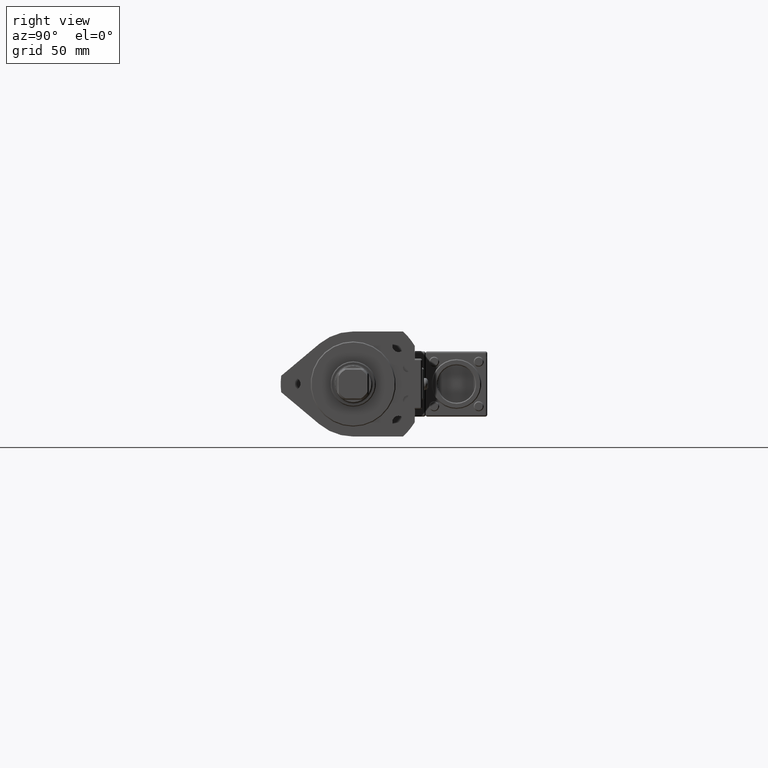
[diagram: clean part render]
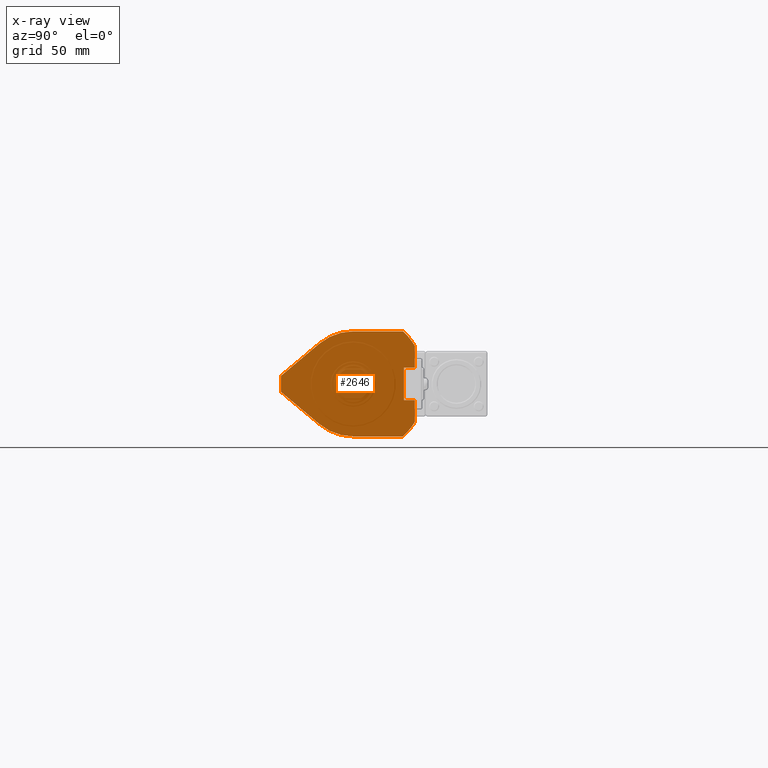
[diagram: x-ray — body ghosted, one internal face saturated and labeled with its STEP entity id]
A machine part, right view, then the same camera in x-ray: the body is ghosted and one INTERNAL B-rep face — a face not visible from any outside direction — is saturated and labeled: STEP entity #2646.
In plain terms, the highlighted planar face has unit normal (-1, 0, 0).
Its self-contained STEP definition (entity closure, byte-faithful):
#208 = LINE ( 'NONE', #5061, #2421 ) ;
#269 = VERTEX_POINT ( 'NONE', #4304 ) ;
#365 = EDGE_CURVE ( 'NONE', #10266, #11812, #7975, .T. ) ;
#511 = VECTOR ( 'NONE', #7125, 1000.000000000000000 ) ;
#688 = EDGE_CURVE ( 'NONE', #5982, #5451, #208, .T. ) ;
#933 = CARTESIAN_POINT ( 'NONE',  ( -120.0000000000000000, 0.0000000000000000000, 0.0000000000000000000 ) ) ;
#1387 = CARTESIAN_POINT ( 'NONE',  ( -120.0000000000000000, 33.99999999999998600, -21.07130750570548000 ) ) ;
#1415 = VERTEX_POINT ( 'NONE', #12255 ) ;
#1623 = CARTESIAN_POINT ( 'NONE',  ( -120.0000000000000000, 0.0000000000000000000, 0.0000000000000000000 ) ) ;
#1659 = FACE_OUTER_BOUND ( 'NONE', #9319, .T. ) ;
#1681 = DIRECTION ( 'NONE',  ( 0.0000000000000000000, -0.7660444431189817900, 0.6427876096865349200 ) ) ;
#1735 = ORIENTED_EDGE ( 'NONE', *, *, #10527, .T. ) ;
#1885 = DIRECTION ( 'NONE',  ( 0.0000000000000000000, 0.0000000000000000000, 1.000000000000000000 ) ) ;
#1953 = EDGE_CURVE ( 'NONE', #8586, #7900, #6430, .T. ) ;
#2243 = DIRECTION ( 'NONE',  ( 0.0000000000000000000, -1.000000000000000000, 3.777988383805101300E-016 ) ) ;
#2421 = VECTOR ( 'NONE', #11767, 1000.000000000000000 ) ;
#2426 = AXIS2_PLACEMENT_3D ( 'NONE', #3695, #10367, #4635 ) ;
#2646 = ADVANCED_FACE ( 'NONE', ( #1659 ), #4503, .T. ) ;
#2695 = EDGE_CURVE ( 'NONE', #9924, #3059, #8697, .T. ) ;
#2914 = CIRCLE ( 'NONE', #11757, 28.99999999999999600 ) ;
#3000 = VECTOR ( 'NONE', #10670, 1000.000000000000000 ) ;
#3027 = ORIENTED_EDGE ( 'NONE', *, *, #8405, .T. ) ;
#3054 = LINE ( 'NONE', #10935, #511 ) ;
#3059 = VERTEX_POINT ( 'NONE', #7422 ) ;
#3261 = LINE ( 'NONE', #5560, #10612 ) ;
#3446 = CARTESIAN_POINT ( 'NONE',  ( -120.0000000000000000, -18.64084068090952000, -22.21528885045046000 ) ) ;
#3695 = CARTESIAN_POINT ( 'NONE',  ( -120.0000000000000000, 0.0000000000000000000, 0.0000000000000000000 ) ) ;
#3917 = VERTEX_POINT ( 'NONE', #8121 ) ;
#3951 = CARTESIAN_POINT ( 'NONE',  ( -120.0000000000000000, 0.0000000000000000000, 28.99999999999999300 ) ) ;
#3973 = CARTESIAN_POINT ( 'NONE',  ( -120.0000000000000000, 0.0000000000000000000, 0.0000000000000000000 ) ) ;
#3977 = AXIS2_PLACEMENT_3D ( 'NONE', #1623, #11197, #5474 ) ;
#4116 = CARTESIAN_POINT ( 'NONE',  ( -120.0000000000000000, -2.963747983757317300E-015, -9.000000000000000000 ) ) ;
#4146 = CIRCLE ( 'NONE', #12132, 40.00000000000000700 ) ;
#4240 = VERTEX_POINT ( 'NONE', #1387 ) ;
#4304 = CARTESIAN_POINT ( 'NONE',  ( -120.0000000000000000, 33.99999999999999300, -9.000000000000008900 ) ) ;
#4443 = ORIENTED_EDGE ( 'NONE', *, *, #2695, .T. ) ;
#4503 = PLANE ( 'NONE',  #3977 ) ;
#4519 = CARTESIAN_POINT ( 'NONE',  ( -120.0000000000000000, 0.0000000000000000000, 0.0000000000000000000 ) ) ;
#4619 = EDGE_CURVE ( 'NONE', #9924, #5451, #10638, .T. ) ;
#4635 = DIRECTION ( 'NONE',  ( 0.0000000000000000000, 0.0000000000000000000, 1.000000000000000000 ) ) ;
#4732 = ORIENTED_EDGE ( 'NONE', *, *, #11900, .T. ) ;
#4924 = DIRECTION ( 'NONE',  ( 0.0000000000000000000, 0.0000000000000000000, 1.000000000000000000 ) ) ;
#4980 = CARTESIAN_POINT ( 'NONE',  ( -120.0000000000000000, 0.0000000000000000000, 0.0000000000000000000 ) ) ;
#5034 = VERTEX_POINT ( 'NONE', #8580 ) ;
#5061 = CARTESIAN_POINT ( 'NONE',  ( -120.0000000000000000, 34.00000000000000000, 21.07130750570548000 ) ) ;
#5088 = CARTESIAN_POINT ( 'NONE',  ( -120.0000000000000000, 3.551475717527324000E-015, -28.99999999999999600 ) ) ;
#5154 = CIRCLE ( 'NONE', #2426, 40.00000000000000000 ) ;
#5434 = VECTOR ( 'NONE', #2243, 1000.000000000000000 ) ;
#5440 = ORIENTED_EDGE ( 'NONE', *, *, #6281, .T. ) ;
#5451 = VERTEX_POINT ( 'NONE', #8443 ) ;
#5474 = DIRECTION ( 'NONE',  ( 0.0000000000000000000, 0.0000000000000000000, 1.000000000000000000 ) ) ;
#5483 = AXIS2_PLACEMENT_3D ( 'NONE', #4980, #11689, #5952 ) ;
#5492 = DIRECTION ( 'NONE',  ( 0.0000000000000000000, 0.0000000000000000000, 1.000000000000000000 ) ) ;
#5560 = CARTESIAN_POINT ( 'NONE',  ( -120.0000000000000000, -39.74533033180151200, 4.506519368201952400 ) ) ;
#5564 = DIRECTION ( 'NONE',  ( 0.0000000000000000000, 0.0000000000000000000, -1.000000000000000000 ) ) ;
#5748 = EDGE_CURVE ( 'NONE', #6633, #1415, #8684, .T. ) ;
#5787 = CARTESIAN_POINT ( 'NONE',  ( -120.0000000000000000, 0.0000000000000000000, 28.99999999999999300 ) ) ;
#5952 = DIRECTION ( 'NONE',  ( 0.0000000000000000000, 0.0000000000000000000, 1.000000000000000000 ) ) ;
#5982 = VERTEX_POINT ( 'NONE', #6823 ) ;
#5997 = VECTOR ( 'NONE', #7045, 1000.000000000000000 ) ;
#6117 = ORIENTED_EDGE ( 'NONE', *, *, #10191, .T. ) ;
#6281 = EDGE_CURVE ( 'NONE', #5034, #3917, #3261, .T. ) ;
#6362 = CARTESIAN_POINT ( 'NONE',  ( -120.0000000000000000, 27.99999999999999600, 8.999999999999991100 ) ) ;
#6421 = ORIENTED_EDGE ( 'NONE', *, *, #365, .T. ) ;
#6430 = LINE ( 'NONE', #3951, #10918 ) ;
#6633 = VERTEX_POINT ( 'NONE', #3446 ) ;
#6823 = CARTESIAN_POINT ( 'NONE',  ( -120.0000000000000000, 34.00000000000000000, 21.07130750570548000 ) ) ;
#6993 = EDGE_CURVE ( 'NONE', #11812, #6633, #8986, .T. ) ;
#7045 = DIRECTION ( 'NONE',  ( 0.0000000000000000000, -1.000000000000000000, 3.293053315285908400E-016 ) ) ;
#7125 = DIRECTION ( 'NONE',  ( 0.0000000000000000000, -3.293053315285908400E-016, -1.000000000000000000 ) ) ;
#7251 = EDGE_CURVE ( 'NONE', #269, #3059, #11070, .T. ) ;
#7422 = CARTESIAN_POINT ( 'NONE',  ( -120.0000000000000000, 27.99999999999999600, -9.000000000000007100 ) ) ;
#7552 = ORIENTED_EDGE ( 'NONE', *, *, #688, .T. ) ;
#7608 = ORIENTED_EDGE ( 'NONE', *, *, #7251, .F. ) ;
#7617 = DIRECTION ( 'NONE',  ( -1.000000000000000000, 0.0000000000000000000, 0.0000000000000000000 ) ) ;
#7837 = CARTESIAN_POINT ( 'NONE',  ( -120.0000000000000000, 27.54995462791182700, 28.99999999999999300 ) ) ;
#7900 = VERTEX_POINT ( 'NONE', #7837 ) ;
#7975 = LINE ( 'NONE', #12017, #5434 ) ;
#8085 = VECTOR ( 'NONE', #5564, 1000.000000000000000 ) ;
#8121 = CARTESIAN_POINT ( 'NONE',  ( -120.0000000000000000, -18.64084068090984300, 22.21528885045019000 ) ) ;
#8373 = CARTESIAN_POINT ( 'NONE',  ( -120.0000000000000000, -18.64084068090952000, -22.21528885045046000 ) ) ;
#8405 = EDGE_CURVE ( 'NONE', #1415, #5034, #4146, .T. ) ;
#8443 = CARTESIAN_POINT ( 'NONE',  ( -120.0000000000000000, 33.99999999999999300, 8.999999999999989300 ) ) ;
#8580 = CARTESIAN_POINT ( 'NONE',  ( -120.0000000000000000, -39.74533033180151200, 4.506519368201952400 ) ) ;
#8586 = VERTEX_POINT ( 'NONE', #5787 ) ;
#8684 = LINE ( 'NONE', #8373, #10905 ) ;
#8697 = LINE ( 'NONE', #11290, #8085 ) ;
#8955 = CARTESIAN_POINT ( 'NONE',  ( -120.0000000000000000, 27.54995462791181300, -29.00000000000000700 ) ) ;
#8986 = CIRCLE ( 'NONE', #10813, 28.99999999999999600 ) ;
#9205 = ORIENTED_EDGE ( 'NONE', *, *, #4619, .F. ) ;
#9319 = EDGE_LOOP ( 'NONE', ( #7608, #4732, #6117, #6421, #10886, #10179, #3027, #5440, #11012, #10688, #1735, #7552, #9205, #4443 ) ) ;
#9712 = CARTESIAN_POINT ( 'NONE',  ( -120.0000000000000000, 2.963747983757317300E-015, 9.000000000000000000 ) ) ;
#9924 = VERTEX_POINT ( 'NONE', #6362 ) ;
#10179 = ORIENTED_EDGE ( 'NONE', *, *, #5748, .T. ) ;
#10191 = EDGE_CURVE ( 'NONE', #4240, #10266, #10995, .T. ) ;
#10266 = VERTEX_POINT ( 'NONE', #8955 ) ;
#10316 = DIRECTION ( 'NONE',  ( 0.0000000000000000000, 0.7660444431189723500, 0.6427876096865460200 ) ) ;
#10367 = DIRECTION ( 'NONE',  ( -1.000000000000000000, 0.0000000000000000000, 0.0000000000000000000 ) ) ;
#10527 = EDGE_CURVE ( 'NONE', #7900, #5982, #5154, .T. ) ;
#10612 = VECTOR ( 'NONE', #10316, 1000.000000000000000 ) ;
#10638 = LINE ( 'NONE', #9712, #3000 ) ;
#10651 = DIRECTION ( 'NONE',  ( 0.0000000000000000000, 1.000000000000000000, 0.0000000000000000000 ) ) ;
#10664 = DIRECTION ( 'NONE',  ( -1.000000000000000000, 0.0000000000000000000, 0.0000000000000000000 ) ) ;
#10670 = DIRECTION ( 'NONE',  ( 0.0000000000000000000, 1.000000000000000000, -3.293053315285908400E-016 ) ) ;
#10688 = ORIENTED_EDGE ( 'NONE', *, *, #1953, .T. ) ;
#10813 = AXIS2_PLACEMENT_3D ( 'NONE', #933, #7617, #1885 ) ;
#10886 = ORIENTED_EDGE ( 'NONE', *, *, #6993, .T. ) ;
#10905 = VECTOR ( 'NONE', #1681, 1000.000000000000000 ) ;
#10918 = VECTOR ( 'NONE', #10651, 1000.000000000000000 ) ;
#10935 = CARTESIAN_POINT ( 'NONE',  ( -120.0000000000000000, 34.00000000000000000, 21.07130750570548000 ) ) ;
#10995 = CIRCLE ( 'NONE', #5483, 39.99999999999999300 ) ;
#11012 = ORIENTED_EDGE ( 'NONE', *, *, #11695, .T. ) ;
#11070 = LINE ( 'NONE', #4116, #5997 ) ;
#11197 = DIRECTION ( 'NONE',  ( -1.000000000000000000, 0.0000000000000000000, 0.0000000000000000000 ) ) ;
#11213 = DIRECTION ( 'NONE',  ( -1.000000000000000000, 0.0000000000000000000, 0.0000000000000000000 ) ) ;
#11290 = CARTESIAN_POINT ( 'NONE',  ( -120.0000000000000000, 27.99999999999999600, 0.0000000000000000000 ) ) ;
#11689 = DIRECTION ( 'NONE',  ( -1.000000000000000000, 0.0000000000000000000, 0.0000000000000000000 ) ) ;
#11695 = EDGE_CURVE ( 'NONE', #3917, #8586, #2914, .T. ) ;
#11757 = AXIS2_PLACEMENT_3D ( 'NONE', #3973, #10664, #4924 ) ;
#11767 = DIRECTION ( 'NONE',  ( 0.0000000000000000000, -3.293053315285908400E-016, -1.000000000000000000 ) ) ;
#11812 = VERTEX_POINT ( 'NONE', #5088 ) ;
#11900 = EDGE_CURVE ( 'NONE', #269, #4240, #3054, .T. ) ;
#12017 = CARTESIAN_POINT ( 'NONE',  ( -120.0000000000000000, 27.54995462791181300, -29.00000000000000700 ) ) ;
#12132 = AXIS2_PLACEMENT_3D ( 'NONE', #4519, #11213, #5492 ) ;
#12255 = CARTESIAN_POINT ( 'NONE',  ( -120.0000000000000000, -39.74533033180144800, -4.506519368202526200 ) ) ;